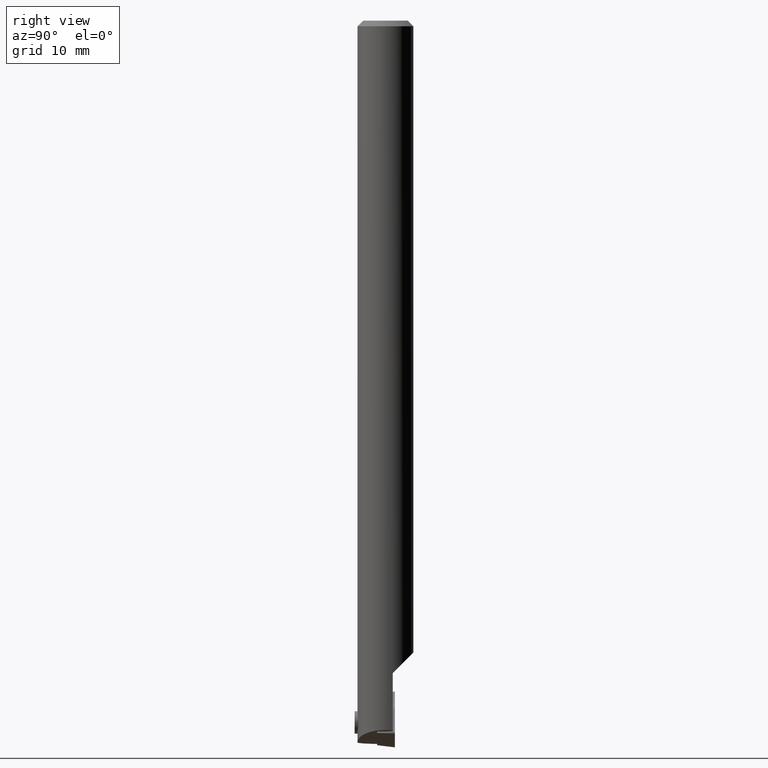
[diagram: clean part render]
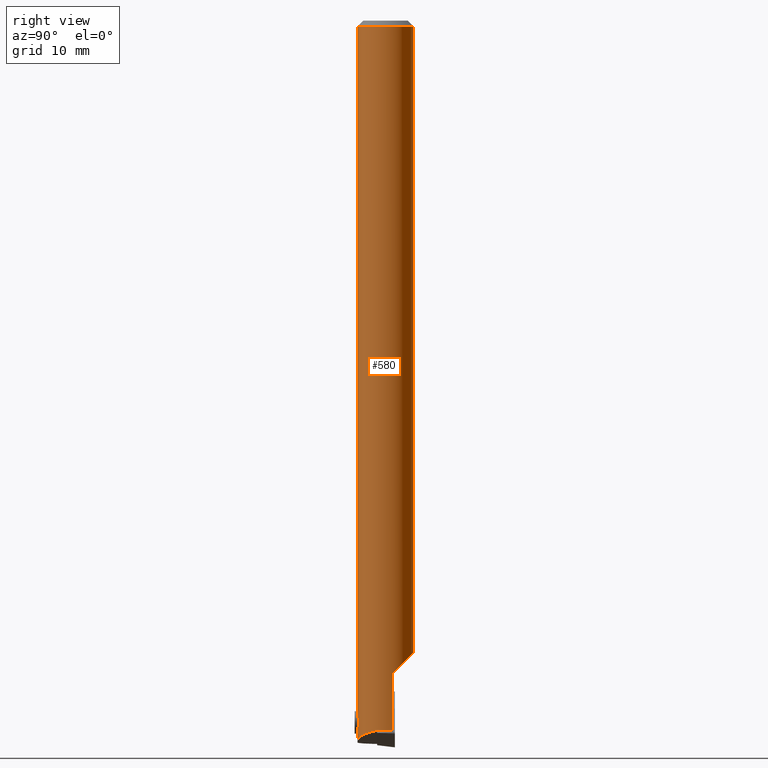
[diagram: same view with one face highlighted and labeled with its STEP entity id]
A machine part, right view. The second image highlights one B-rep face of the part: STEP entity #580.
In plain terms, the highlighted cylindrical surface (edge-blend (fillet) strip) has radius 2.5 mm, axis along (-0, -0, 1).
Its self-contained STEP definition (entity closure, byte-faithful):
#580=ADVANCED_FACE('NONE',(#1620),#1621,.T.);
#590=VERTEX_POINT('NONE',#1633);
#612=EDGE_CURVE('NONE',#1000,#1522,#1657,.T.);
#658=EDGE_CURVE('NONE',#1168,#1522,#1712,.T.);
#764=VERTEX_POINT('NONE',#1829);
#844=VERTEX_POINT('NONE',#1918);
#852=EDGE_CURVE('NONE',#764,#844,#1928,.T.);
#1000=VERTEX_POINT('NONE',#2088);
#1054=EDGE_CURVE('NONE',#1386,#1306,#2151,.T.);
#1168=VERTEX_POINT('NONE',#2273);
#1306=VERTEX_POINT('NONE',#2424);
#1386=VERTEX_POINT('NONE',#2507);
#1400=EDGE_CURVE('NONE',#1168,#1468,#2523,.T.);
#1416=EDGE_CURVE('NONE',#1468,#764,#2539,.T.);
#1468=VERTEX_POINT('NONE',#2602);
#1474=EDGE_CURVE('NONE',#590,#1306,#2609,.T.);
#1504=EDGE_CURVE('NONE',#590,#1000,#2643,.T.);
#1508=EDGE_CURVE('NONE',#844,#1386,#2647,.T.);
#1522=VERTEX_POINT('NONE',#2662);
#1620=FACE_OUTER_BOUND('',#2769,.T.);
#1621=CYLINDRICAL_SURFACE('',#2770,2.5);
#1633=CARTESIAN_POINT('',(0.0,2.5,-56.5054493858207));
#1657=LINE('',#2817,#2818);
#1712=(B_SPLINE_CURVE(3,(#2897,#2898,#2899,#2900),.UNSPECIFIED.,.F.,.F.)B_SPLINE_CURVE_WITH_KNOTS((4,4),(4.71238898038469,6.54620751008806),.UNSPECIFIED.)RATIONAL_B_SPLINE_CURVE((1.0,0.738850835353215,0.738850835353215,1.0))BOUNDED_CURVE()REPRESENTATION_ITEM('')GEOMETRIC_REPRESENTATION_ITEM()CURVE());
#1829=CARTESIAN_POINT('',(0.147134448373831,-2.49566653503663,-63.3547932892828));
#1918=CARTESIAN_POINT('',(-3.27220160329131E-016,-2.5,-62.0760055999517));
#1928=B_SPLINE_CURVE_WITH_KNOTS('',3,(#3226,#3227,#3228,#3229,#3230,#3231,#3232,#3233,#3234,#3235),.UNSPECIFIED.,.F.,.F.,(4,2,2,2,4),(2.71050543121376E-020,0.000372559469348589,0.000745118938697179,0.00111767840804577,0.00149023787739436),.UNSPECIFIED.);
#2088=CARTESIAN_POINT('',(2.41402154091466,0.65,-58.3554493858207));
#2151=CIRCLE('',#3580,2.5);
#2273=CARTESIAN_POINT('',(-3.06161699786838E-016,-2.5,-64.5097463969191));
#2424=CARTESIAN_POINT('',(0.0,2.5,-0.5));
#2507=CARTESIAN_POINT('',(-3.06161699786838E-016,-2.5,-0.5));
#2523=LINE('',#4147,#4148);
#2539=B_SPLINE_CURVE_WITH_KNOTS('',3,(#4169,#4170,#4171,#4172,#4173,#4174),.UNSPECIFIED.,.F.,.F.,(4,2,4),(0.00489016414057254,0.00498127338166842,0.0050723826227643),.UNSPECIFIED.);
#2602=CARTESIAN_POINT('',(1.33825375076837E-014,-2.50000000000002,-63.4634150560234));
#2609=LINE('',#4268,#4269);
#2643=(B_SPLINE_CURVE(3,(#4318,#4319,#4320,#4321),.UNSPECIFIED.,.F.,.F.)B_SPLINE_CURVE_WITH_KNOTS((4,4),(0.0,1.30777412388643),.UNSPECIFIED.)RATIONAL_B_SPLINE_CURVE((1.0,0.862483595546251,0.862483595546251,1.0))BOUNDED_CURVE()REPRESENTATION_ITEM('')GEOMETRIC_REPRESENTATION_ITEM()CURVE());
#2647=LINE('',#4334,#4335);
#2662=CARTESIAN_POINT('',(2.41402154091466,0.65,-63.4850550470133));
#2769=EDGE_LOOP('',(#4447,#4448,#4449,#4450,#4451,#4452,#4453,#4454,#4455));
#2770=AXIS2_PLACEMENT_3D('',#4456,#4457,#4458);
#2817=CARTESIAN_POINT('',(2.41402154091466,0.65,1.94423405547652));
#2818=VECTOR('',#4506,1000.0);
#2897=CARTESIAN_POINT('',(-3.06161699786838E-016,-2.5,-64.5097463969191));
#2898=CARTESIAN_POINT('',(1.79045024006758,-2.5,-63.749745360334));
#2899=CARTESIAN_POINT('',(2.87953860333223,-1.07887417898359,-63.2874547775012));
#2900=CARTESIAN_POINT('',(2.41402154091466,0.65,-63.4850550470133));
#3226=CARTESIAN_POINT('',(0.147134448373831,-2.49566653503663,-63.3547932892828));
#3227=CARTESIAN_POINT('',(0.23918557824663,-2.49023957112703,-63.2689542219805));
#3228=CARTESIAN_POINT('',(0.309323444463137,-2.48116843921478,-63.1627007937571));
#3229=CARTESIAN_POINT('',(0.395126530633555,-2.46895784529415,-62.9297684464456));
#3230=CARTESIAN_POINT('',(0.410535086161555,-2.46610387410246,-62.8023437809796));
#3231=CARTESIAN_POINT('',(0.382098253905979,-2.47066960542984,-62.5546125709725));
#3232=CARTESIAN_POINT('',(0.338267302987598,-2.47797023385105,-62.4338781853198));
#3233=CARTESIAN_POINT('',(0.201068915668168,-2.49285630136884,-62.22554437017));
#3234=CARTESIAN_POINT('',(0.10765123356525,-2.5,-62.1378405063595));
#3235=CARTESIAN_POINT('',(-3.27220160329131E-016,-2.5,-62.0760055999517));
#3580=AXIS2_PLACEMENT_3D('',#5136,#5137,#5138);
#4147=CARTESIAN_POINT('',(-3.06161699786838E-016,-2.5,1.94423405547652));
#4148=VECTOR('',#5509,1000.0);
#4169=CARTESIAN_POINT('',(1.33825375076837E-014,-2.50000000000002,-63.4634150560234));
#4170=CARTESIAN_POINT('',(0.0264977146349266,-2.5,-63.448194759421));
#4171=CARTESIAN_POINT('',(0.0520052762823693,-2.49957947316962,-63.4315307427234));
#4172=CARTESIAN_POINT('',(0.101057379842832,-2.49807716002357,-63.3953357732838));
#4173=CARTESIAN_POINT('',(0.124623388329128,-2.49699369648047,-63.3757851923795));
#4174=CARTESIAN_POINT('',(0.147134448373831,-2.49566653503663,-63.3547932892828));
#4268=CARTESIAN_POINT('',(0.0,2.5,1.94423405547652));
#4269=VECTOR('',#5647,1000.0);
#4318=CARTESIAN_POINT('',(0.0,2.5,-56.5054493858207));
#4319=CARTESIAN_POINT('',(1.17543540571067,2.5,-56.5054493858207));
#4320=CARTESIAN_POINT('',(2.10840833542989,1.78501055573573,-57.220438830085));
#4321=CARTESIAN_POINT('',(2.41402154091466,0.65,-58.3554493858207));
#4334=CARTESIAN_POINT('',(-3.06161699786838E-016,-2.5,1.94423405547652));
#4335=VECTOR('',#5691,1000.0);
#4447=ORIENTED_EDGE('',*,*,#1400,.F.);
#4448=ORIENTED_EDGE('',*,*,#658,.T.);
#4449=ORIENTED_EDGE('',*,*,#612,.F.);
#4450=ORIENTED_EDGE('',*,*,#1504,.F.);
#4451=ORIENTED_EDGE('',*,*,#1474,.T.);
#4452=ORIENTED_EDGE('',*,*,#1054,.F.);
#4453=ORIENTED_EDGE('',*,*,#1508,.F.);
#4454=ORIENTED_EDGE('',*,*,#852,.F.);
#4455=ORIENTED_EDGE('',*,*,#1416,.F.);
#4456=CARTESIAN_POINT('',(0.0,0.0,1.94423405547652));
#4457=DIRECTION('',(-0.0,-0.0,1.0));
#4458=DIRECTION('',(0.0,1.0,0.0));
#4506=DIRECTION('',(0.0,0.0,-1.0));
#5136=CARTESIAN_POINT('',(0.0,0.0,-0.5));
#5137=DIRECTION('',(0.0,-0.0,1.0));
#5138=DIRECTION('',(0.0,1.0,0.0));
#5509=DIRECTION('',(0.0,-0.0,1.0));
#5647=DIRECTION('',(0.0,-0.0,1.0));
#5691=DIRECTION('',(0.0,-0.0,1.0));